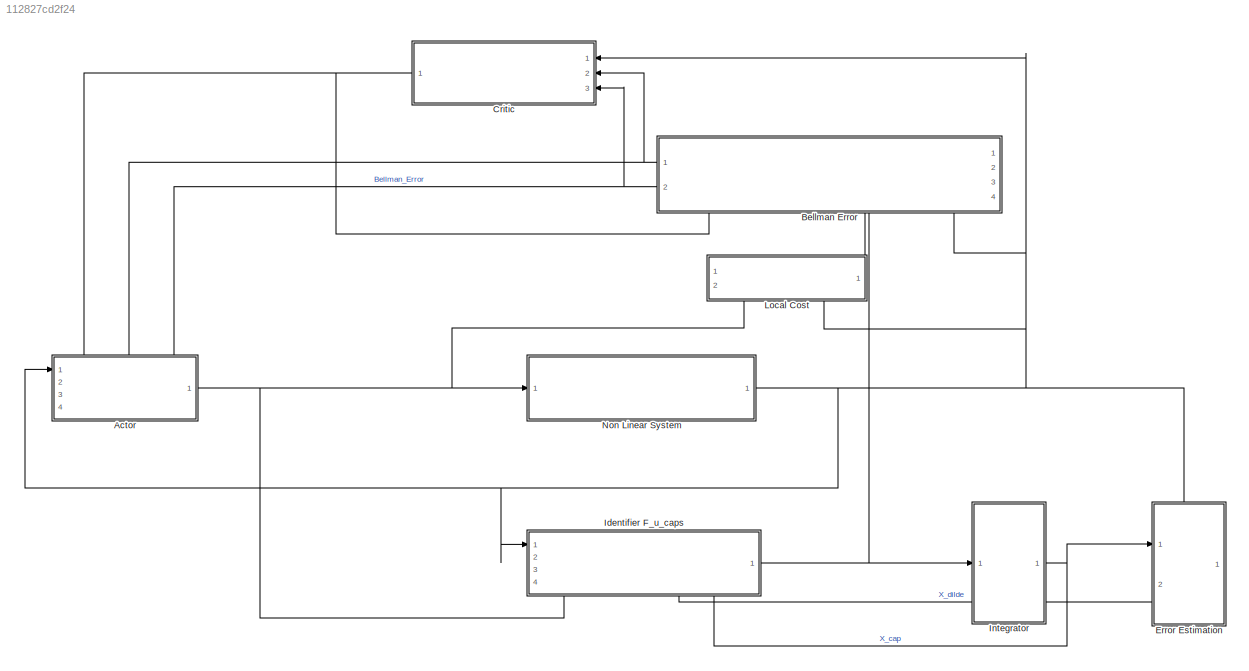
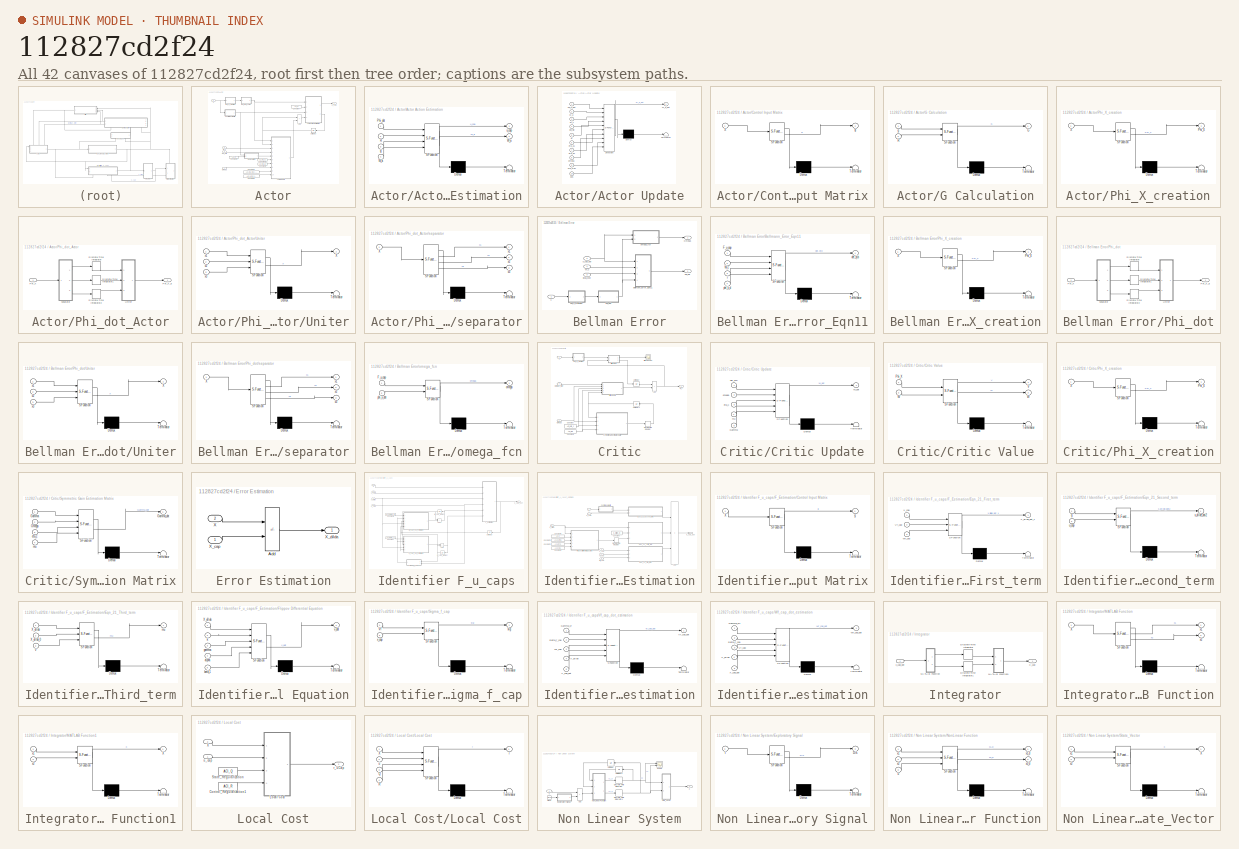
[diagram: thumbnail index - all 42 canvases of the model, root first then tree order]
MODEL slx_112827cd2f24
KIND model
CONFIG AbsTol = auto
CONFIG EnableMultiTasking = off
CONFIG FixedStep = auto
CONFIG MaxStep = auto
CONFIG MinStep = auto
CONFIG PreLoadFcn = SAMPLE_TIME = 0.01;\nX1_0               = 3;\nX2_0               = -1;\n
CONFIG RelTol = 1e-3
CONFIG SampleTimeConstraint = Unconstrained
CONFIG SolverName = ode45
CONFIG StartTime = 0.0
CONFIG StopTime = SIM_DURATION
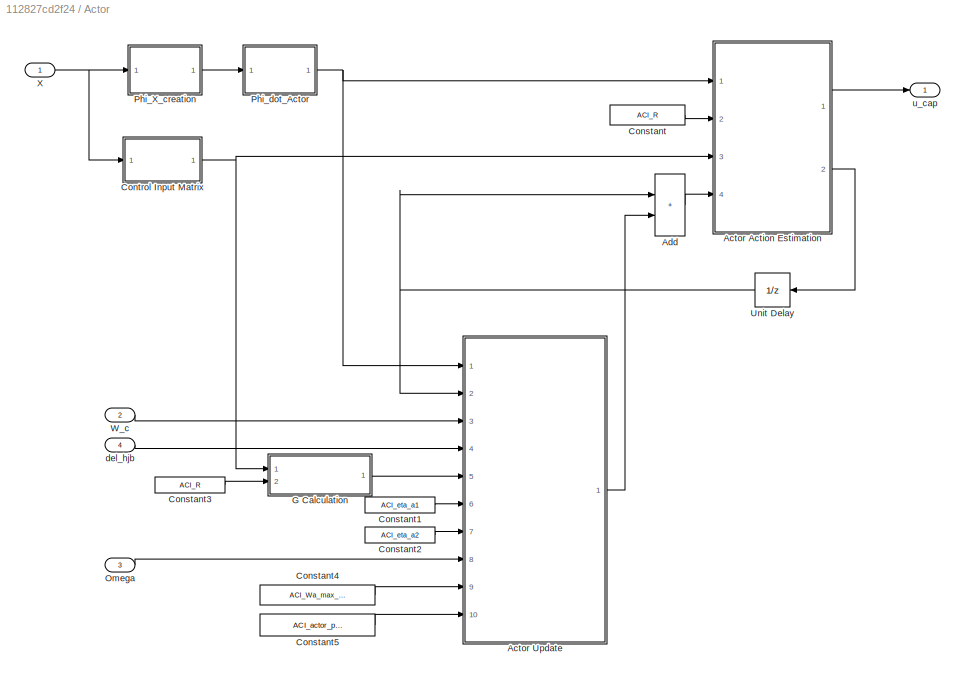
BLOCK [SubSystem] Actor
  PortSchema = {"entries":[{"content":{"sides":[{"content":{"connectorIds":["In1"]},"type":"ConnectorPlacement.EquallySpacedRectSide","uuid":"36bb19c7-ed28-4f81-a2b0-56b05d277fb3"},{"content":{"connectorIds":["Out1"],"side":"RIGHT"},"type":"ConnectorPlacement.EquallySpacedRectSide","uuid":"62e3b38d-27a4-411c-9c0c-4947886674bc"},{"content":{"connectorIds":["In2","In3","In4"],"side":"TOP"},"type":"ConnectorPlaceme...<+257ch>
  Ports = [4, 1]
  RequestExecContextInheritance = off
BLOCK [SubSystem] Actor/Actor Action Estimation
  ErrorFcn = Stateflow.Translate.translate
  PermitHierarchicalResolution = ExplicitOnly
  Ports = [4, 2]
  RequestExecContextInheritance = off
  SFBlockType = MATLAB Function
  TreatAsAtomicUnit = on
BLOCK [Demux] Actor/Actor Action Estimation/ Demux 
  Outputs = 1
  Ports = [1, 1]
BLOCK [S-Function] Actor/Actor Action Estimation/ SFunction 
  EnableBusSupport = on
  FunctionName = sf_sfun
  PortCounts = [4 3]
  Ports = [4, 3]
  SFcnIsStateOwnerBlock = off
  SFunctionDeploymentMode = off
  Tag = Stateflow S-Function 4
BLOCK [Terminator] Actor/Actor Action Estimation/ Terminator 
BLOCK [Inport] Actor/Actor Action Estimation/Phi_dot
BLOCK [Inport] Actor/Actor Action Estimation/R
  Port = 2
BLOCK [Outport] Actor/Actor Action Estimation/W_a
  Port = 2
BLOCK [Inport] Actor/Actor Action Estimation/W_a 
  Port = 4
BLOCK [Inport] Actor/Actor Action Estimation/g
  Port = 3
BLOCK [Outport] Actor/Actor Action Estimation/u_cap
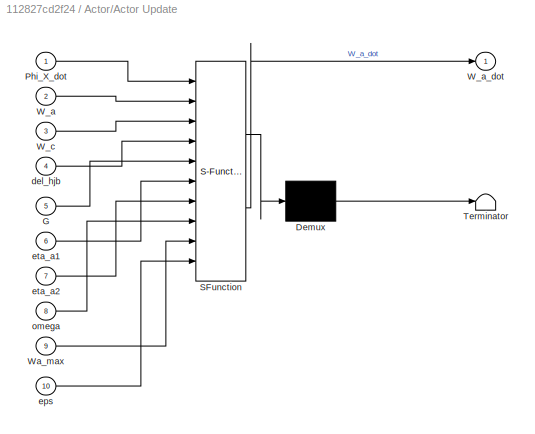
BLOCK [SubSystem] Actor/Actor Update
  ErrorFcn = Stateflow.Translate.translate
  PermitHierarchicalResolution = ExplicitOnly
  Ports = [10, 1]
  RequestExecContextInheritance = off
  SFBlockType = MATLAB Function
  TreatAsAtomicUnit = on
BLOCK [Demux] Actor/Actor Update/ Demux 
  Outputs = 1
  Ports = [1, 1]
BLOCK [S-Function] Actor/Actor Update/ SFunction 
  EnableBusSupport = on
  FunctionName = sf_sfun
  PortCounts = [10 2]
  Ports = [10, 2]
  SFcnIsStateOwnerBlock = off
  SFunctionDeploymentMode = off
  Tag = Stateflow S-Function 6
BLOCK [Terminator] Actor/Actor Update/ Terminator 
BLOCK [Inport] Actor/Actor Update/G
  Port = 5
BLOCK [Inport] Actor/Actor Update/Phi_X_dot
BLOCK [Inport] Actor/Actor Update/W_a
  Port = 2
BLOCK [Outport] Actor/Actor Update/W_a_dot
BLOCK [Inport] Actor/Actor Update/W_c
  Port = 3
BLOCK [Inport] Actor/Actor Update/Wa_max
  Port = 9
BLOCK [Inport] Actor/Actor Update/del_hjb
  Port = 4
BLOCK [Inport] Actor/Actor Update/eps
  Port = 10
BLOCK [Inport] Actor/Actor Update/eta_a1
  Port = 6
BLOCK [Inport] Actor/Actor Update/eta_a2
  Port = 7
BLOCK [Inport] Actor/Actor Update/omega
  Port = 8
BLOCK [Sum] Actor/Add
  IconShape = rectangular
  Ports = [2, 1]
BLOCK [Constant] Actor/Constant
  Value = ACI_R
BLOCK [Constant] Actor/Constant1
  Value = ACI_eta_a1
BLOCK [Constant] Actor/Constant2
  Value = ACI_eta_a2
BLOCK [Constant] Actor/Constant3
  Value = ACI_R
BLOCK [Constant] Actor/Constant4
  Value = ACI_Wa_max_proj
BLOCK [Constant] Actor/Constant5
  Value = ACI_actor_proj_eps
BLOCK [SubSystem] Actor/Control Input Matrix
  ErrorFcn = Stateflow.Translate.translate
  PermitHierarchicalResolution = ExplicitOnly
  Ports = [1, 1]
  RequestExecContextInheritance = off
  SFBlockType = MATLAB Function
  TreatAsAtomicUnit = on
BLOCK [Demux] Actor/Control Input Matrix/ Demux 
  Outputs = 1
  Ports = [1, 1]
BLOCK [S-Function] Actor/Control Input Matrix/ SFunction 
  EnableBusSupport = on
  FunctionName = sf_sfun
  PortCounts = [1 2]
  Ports = [1, 2]
  SFcnIsStateOwnerBlock = off
  SFunctionDeploymentMode = off
  Tag = Stateflow S-Function 5
BLOCK [Terminator] Actor/Control Input Matrix/ Terminator 
BLOCK [Inport] Actor/Control Input Matrix/X
BLOCK [Outport] Actor/Control Input Matrix/g
BLOCK [SubSystem] Actor/G Calculation
  ErrorFcn = Stateflow.Translate.translate
  PermitHierarchicalResolution = ExplicitOnly
  Ports = [2, 1]
  RequestExecContextInheritance = off
  SFBlockType = MATLAB Function
  TreatAsAtomicUnit = on
BLOCK [Demux] Actor/G Calculation/ Demux 
  Outputs = 1
  Ports = [1, 1]
BLOCK [S-Function] Actor/G Calculation/ SFunction 
  EnableBusSupport = on
  FunctionName = sf_sfun
  PortCounts = [2 2]
  Ports = [2, 2]
  SFcnIsStateOwnerBlock = off
  SFunctionDeploymentMode = off
  Tag = Stateflow S-Function 28
BLOCK [Terminator] Actor/G Calculation/ Terminator 
BLOCK [Outport] Actor/G Calculation/G
BLOCK [Inport] Actor/G Calculation/R
  Port = 2
BLOCK [Inport] Actor/G Calculation/g
BLOCK [Inport] Actor/Omega
  Port = 3
BLOCK [SubSystem] Actor/Phi_X_creation
  ErrorFcn = Stateflow.Translate.translate
  PermitHierarchicalResolution = ExplicitOnly
  Ports = [1, 1]
  RequestExecContextInheritance = off
  SFBlockType = MATLAB Function
  TreatAsAtomicUnit = on
BLOCK [Demux] Actor/Phi_X_creation/ Demux 
  Outputs = 1
  Ports = [1, 1]
BLOCK [S-Function] Actor/Phi_X_creation/ SFunction 
  EnableBusSupport = on
  FunctionName = sf_sfun
  PortCounts = [1 2]
  Ports = [1, 2]
  SFcnIsStateOwnerBlock = off
  SFunctionDeploymentMode = off
  Tag = Stateflow S-Function 23
BLOCK [Terminator] Actor/Phi_X_creation/ Terminator 
BLOCK [Outport] Actor/Phi_X_creation/Phi_X
BLOCK [Inport] Actor/Phi_X_creation/X
BLOCK [SubSystem] Actor/Phi_dot_Actor
  Ports = [1, 1]
  RequestExecContextInheritance = off
BLOCK [DiscreteIntegrator] Actor/Phi_dot_Actor/Discrete-Time Integrator
  ICPrevOutput = DiscIntNeverNeededParam
  ICPrevScaledInput = DiscIntNeverNeededParam
  InitialConditionSetting = Auto
  Ports = [1, 1]
  SampleTime = -1
BLOCK [DiscreteIntegrator] Actor/Phi_dot_Actor/Discrete-Time Integrator1
  ICPrevOutput = DiscIntNeverNeededParam
  ICPrevScaledInput = DiscIntNeverNeededParam
  InitialConditionSetting = Auto
  Ports = [1, 1]
  SampleTime = -1
BLOCK [DiscreteIntegrator] Actor/Phi_dot_Actor/Discrete-Time Integrator2
  ICPrevOutput = DiscIntNeverNeededParam
  ICPrevScaledInput = DiscIntNeverNeededParam
  InitialConditionSetting = Auto
  Ports = [1, 1]
  SampleTime = -1
BLOCK [Inport] Actor/Phi_dot_Actor/Phi_X
BLOCK [Outport] Actor/Phi_dot_Actor/Phi_X_d
BLOCK [SubSystem] Actor/Phi_dot_Actor/Uniter
  ErrorFcn = Stateflow.Translate.translate
  PermitHierarchicalResolution = ExplicitOnly
  Ports = [3, 1]
  RequestExecContextInheritance = off
  SFBlockType = MATLAB Function
  TreatAsAtomicUnit = on
BLOCK [Demux] Actor/Phi_dot_Actor/Uniter/ Demux 
  Outputs = 1
  Ports = [1, 1]
BLOCK [S-Function] Actor/Phi_dot_Actor/Uniter/ SFunction 
  EnableBusSupport = on
  FunctionName = sf_sfun
  PortCounts = [3 2]
  Ports = [3, 2]
  SFcnIsStateOwnerBlock = off
  SFunctionDeploymentMode = off
  Tag = Stateflow S-Function 26
BLOCK [Terminator] Actor/Phi_dot_Actor/Uniter/ Terminator 
BLOCK [Outport] Actor/Phi_dot_Actor/Uniter/X
BLOCK [Inport] Actor/Phi_dot_Actor/Uniter/x1
BLOCK [Inport] Actor/Phi_dot_Actor/Uniter/x2
  Port = 2
BLOCK [Inport] Actor/Phi_dot_Actor/Uniter/x3
  Port = 3
BLOCK [SubSystem] Actor/Phi_dot_Actor/separator
  ErrorFcn = Stateflow.Translate.translate
  PermitHierarchicalResolution = ExplicitOnly
  Ports = [1, 3]
  RequestExecContextInheritance = off
  SFBlockType = MATLAB Function
  TreatAsAtomicUnit = on
BLOCK [Demux] Actor/Phi_dot_Actor/separator/ Demux 
  Outputs = 1
  Ports = [1, 1]
BLOCK [S-Function] Actor/Phi_dot_Actor/separator/ SFunction 
  EnableBusSupport = on
  FunctionName = sf_sfun
  PortCounts = [1 4]
  Ports = [1, 4]
  SFcnIsStateOwnerBlock = off
  SFunctionDeploymentMode = off
  Tag = Stateflow S-Function 27
BLOCK [Terminator] Actor/Phi_dot_Actor/separator/ Terminator 
BLOCK [Inport] Actor/Phi_dot_Actor/separator/X
BLOCK [Outport] Actor/Phi_dot_Actor/separator/x1
BLOCK [Outport] Actor/Phi_dot_Actor/separator/x2
  Port = 2
BLOCK [Outport] Actor/Phi_dot_Actor/separator/x3
  Port = 3
BLOCK [UnitDelay] Actor/Unit Delay
  HasFrameUpgradeWarning = on
  InitialCondition = W_Actor_0
  SampleTime = SAMPLE_TIME
BLOCK [Inport] Actor/W_c
  Port = 2
BLOCK [Inport] Actor/X
BLOCK [Inport] Actor/del_hjb
  Port = 4
BLOCK [Outport] Actor/u_cap
BLOCK [SubSystem] Bellman Error
  PortSchema = {"entries":[{"content":{"sides":[{"content":{"connectorIds":[]},"type":"ConnectorPlacement.EquallySpacedRectSide","uuid":"36bb19c7-ed28-4f81-a2b0-56b05d277fb3"},{"content":{"connectorIds":["Out1","Out2"],"side":"RIGHT"},"type":"ConnectorPlacement.EquallySpacedRectSide","uuid":"62e3b38d-27a4-411c-9c0c-4947886674bc"},{"content":{"connectorIds":[],"side":"TOP"},"type":"ConnectorPlacement.EquallySpace...<+409ch>
  Ports = [4, 2]
  RequestExecContextInheritance = off
BLOCK [SubSystem] Bellman Error/Bellmann_Error_Eqn11
  ErrorFcn = Stateflow.Translate.translate
  PermitHierarchicalResolution = ExplicitOnly
  Ports = [4, 1]
  RequestExecContextInheritance = off
  SFBlockType = MATLAB Function
  TreatAsAtomicUnit = on
BLOCK [Demux] Bellman Error/Bellmann_Error_Eqn11/ Demux 
  Outputs = 1
  Ports = [1, 1]
BLOCK [S-Function] Bellman Error/Bellmann_Error_Eqn11/ SFunction 
  EnableBusSupport = on
  FunctionName = sf_sfun
  PortCounts = [4 2]
  Ports = [4, 2]
  SFcnIsStateOwnerBlock = off
  SFunctionDeploymentMode = off
  Tag = Stateflow S-Function 15
BLOCK [Terminator] Bellman Error/Bellmann_Error_Eqn11/ Terminator 
BLOCK [Inport] Bellman Error/Bellmann_Error_Eqn11/F_u_cap
BLOCK [Inport] Bellman Error/Bellmann_Error_Eqn11/W_c
  Port = 2
BLOCK [Outport] Bellman Error/Bellmann_Error_Eqn11/del_hjb
BLOCK [Inport] Bellman Error/Bellmann_Error_Eqn11/phi_x_d
  Port = 4
BLOCK [Inport] Bellman Error/Bellmann_Error_Eqn11/r
  Port = 3
BLOCK [Outport] Bellman Error/Omega
BLOCK [SubSystem] Bellman Error/Phi_X_creation
  ErrorFcn = Stateflow.Translate.translate
  PermitHierarchicalResolution = ExplicitOnly
  Ports = [1, 1]
  RequestExecContextInheritance = off
  SFBlockType = MATLAB Function
  TreatAsAtomicUnit = on
BLOCK [Demux] Bellman Error/Phi_X_creation/ Demux 
  Outputs = 1
  Ports = [1, 1]
BLOCK [S-Function] Bellman Error/Phi_X_creation/ SFunction 
  EnableBusSupport = on
  FunctionName = sf_sfun
  PortCounts = [1 2]
  Ports = [1, 2]
  SFcnIsStateOwnerBlock = off
  SFunctionDeploymentMode = off
  Tag = Stateflow S-Function 18
BLOCK [Terminator] Bellman Error/Phi_X_creation/ Terminator 
BLOCK [Outport] Bellman Error/Phi_X_creation/Phi_X
BLOCK [Inport] Bellman Error/Phi_X_creation/X
BLOCK [SubSystem] Bellman Error/Phi_dot
  Ports = [1, 1]
  RequestExecContextInheritance = off
BLOCK [DiscreteIntegrator] Bellman Error/Phi_dot/Discrete-Time Integrator
  ICPrevOutput = DiscIntNeverNeededParam
  ICPrevScaledInput = DiscIntNeverNeededParam
  InitialConditionSetting = Auto
  Ports = [1, 1]
  SampleTime = -1
BLOCK [DiscreteIntegrator] Bellman Error/Phi_dot/Discrete-Time Integrator1
  ICPrevOutput = DiscIntNeverNeededParam
  ICPrevScaledInput = DiscIntNeverNeededParam
  InitialConditionSetting = Auto
  Ports = [1, 1]
  SampleTime = -1
BLOCK [DiscreteIntegrator] Bellman Error/Phi_dot/Discrete-Time Integrator2
  ICPrevOutput = DiscIntNeverNeededParam
  ICPrevScaledInput = DiscIntNeverNeededParam
  InitialConditionSetting = Auto
  Ports = [1, 1]
  SampleTime = -1
BLOCK [Inport] Bellman Error/Phi_dot/Phi_X
BLOCK [Outport] Bellman Error/Phi_dot/Phi_X_d
BLOCK [SubSystem] Bellman Error/Phi_dot/Uniter
  ErrorFcn = Stateflow.Translate.translate
  PermitHierarchicalResolution = ExplicitOnly
  Ports = [3, 1]
  RequestExecContextInheritance = off
  SFBlockType = MATLAB Function
  TreatAsAtomicUnit = on
BLOCK [Demux] Bellman Error/Phi_dot/Uniter/ Demux 
  Outputs = 1
  Ports = [1, 1]
BLOCK [S-Function] Bellman Error/Phi_dot/Uniter/ SFunction 
  EnableBusSupport = on
  FunctionName = sf_sfun
  PortCounts = [3 2]
  Ports = [3, 2]
  SFcnIsStateOwnerBlock = off
  SFunctionDeploymentMode = off
  Tag = Stateflow S-Function 20
BLOCK [Terminator] Bellman Error/Phi_dot/Uniter/ Terminator 
BLOCK [Outport] Bellman Error/Phi_dot/Uniter/X
BLOCK [Inport] Bellman Error/Phi_dot/Uniter/x1
BLOCK [Inport] Bellman Error/Phi_dot/Uniter/x2
  Port = 2
BLOCK [Inport] Bellman Error/Phi_dot/Uniter/x3
  Port = 3
BLOCK [SubSystem] Bellman Error/Phi_dot/separator
  ErrorFcn = Stateflow.Translate.translate
  PermitHierarchicalResolution = ExplicitOnly
  Ports = [1, 3]
  RequestExecContextInheritance = off
  SFBlockType = MATLAB Function
  TreatAsAtomicUnit = on
BLOCK [Demux] Bellman Error/Phi_dot/separator/ Demux 
  Outputs = 1
  Ports = [1, 1]
BLOCK [S-Function] Bellman Error/Phi_dot/separator/ SFunction 
  EnableBusSupport = on
  FunctionName = sf_sfun
  PortCounts = [1 4]
  Ports = [1, 4]
  SFcnIsStateOwnerBlock = off
  SFunctionDeploymentMode = off
  Tag = Stateflow S-Function 19
BLOCK [Terminator] Bellman Error/Phi_dot/separator/ Terminator 
BLOCK [Inport] Bellman Error/Phi_dot/separator/X
BLOCK [Outport] Bellman Error/Phi_dot/separator/x1
BLOCK [Outport] Bellman Error/Phi_dot/separator/x2
  Port = 2
BLOCK [Outport] Bellman Error/Phi_dot/separator/x3
  Port = 3
BLOCK [Inport] Bellman Error/W_c
  Port = 4
BLOCK [Inport] Bellman Error/X
BLOCK [Inport] Bellman Error/X_cap_dot
  Port = 2
BLOCK [Outport] Bellman Error/del_hjb
  Port = 2
BLOCK [Inport] Bellman Error/local_cost
  Port = 3
BLOCK [SubSystem] Bellman Error/omega_fcn
  ErrorFcn = Stateflow.Translate.translate
  PermitHierarchicalResolution = ExplicitOnly
  Ports = [2, 1]
  RequestExecContextInheritance = off
  SFBlockType = MATLAB Function
  TreatAsAtomicUnit = on
BLOCK [Demux] Bellman Error/omega_fcn/ Demux 
  Outputs = 1
  Ports = [1, 1]
BLOCK [S-Function] Bellman Error/omega_fcn/ SFunction 
  EnableBusSupport = on
  FunctionName = sf_sfun
  PortCounts = [2 2]
  Ports = [2, 2]
  SFcnIsStateOwnerBlock = off
  SFunctionDeploymentMode = off
  Tag = Stateflow S-Function 25
BLOCK [Terminator] Bellman Error/omega_fcn/ Terminator 
BLOCK [Inport] Bellman Error/omega_fcn/F_u_cap
BLOCK [Outport] Bellman Error/omega_fcn/omega
BLOCK [Inport] Bellman Error/omega_fcn/phi_x_dot
  Port = 2
BLOCK [SubSystem] Critic
  Ports = [3, 1]
  RequestExecContextInheritance = off
BLOCK [Sum] Critic/Add
  IconShape = rectangular
  Ports = [2, 1]
BLOCK [Inport] Critic/Bellman_Error
  Port = 3
BLOCK [Constant] Critic/Constant
  Value = ACI_eta_c
BLOCK [Constant] Critic/Constant1
  Value = ACI_mu
BLOCK [SubSystem] Critic/Critic Update
  ErrorFcn = Stateflow.Translate.translate
  PermitHierarchicalResolution = ExplicitOnly
  Ports = [5, 1]
  RequestExecContextInheritance = off
  SFBlockType = MATLAB Function
  TreatAsAtomicUnit = on
BLOCK [Demux] Critic/Critic Update/ Demux 
  Outputs = 1
  Ports = [1, 1]
BLOCK [S-Function] Critic/Critic Update/ SFunction 
  EnableBusSupport = on
  FunctionName = sf_sfun
  PortCounts = [5 2]
  Ports = [5, 2]
  SFcnIsStateOwnerBlock = off
  SFunctionDeploymentMode = off
  Tag = Stateflow S-Function 3
BLOCK [Terminator] Critic/Critic Update/ Terminator 
BLOCK [Inport] Critic/Critic Update/Gamma
  Port = 5
BLOCK [Outport] Critic/Critic Update/W_dot
BLOCK [Inport] Critic/Critic Update/del_hjb
BLOCK [Inport] Critic/Critic Update/eta_c
  Port = 3
BLOCK [Inport] Critic/Critic Update/mu
  Port = 4
BLOCK [Inport] Critic/Critic Update/omega
  Port = 2
BLOCK [SubSystem] Critic/Critic Value
  ErrorFcn = Stateflow.Translate.translate
  PermitHierarchicalResolution = ExplicitOnly
  Ports = [2, 2]
  RequestExecContextInheritance = off
  SFBlockType = MATLAB Function
  TreatAsAtomicUnit = on
BLOCK [Demux] Critic/Critic Value/ Demux 
  Outputs = 1
  Ports = [1, 1]
BLOCK [S-Function] Critic/Critic Value/ SFunction 
  EnableBusSupport = on
  FunctionName = sf_sfun
  PortCounts = [2 3]
  Ports = [2, 3]
  SFcnIsStateOwnerBlock = off
  SFunctionDeploymentMode = off
  Tag = Stateflow S-Function 1
BLOCK [Terminator] Critic/Critic Value/ Terminator 
BLOCK [Inport] Critic/Critic Value/Phi_X
BLOCK [Outport] Critic/Critic Value/V
BLOCK [Outport] Critic/Critic Value/W
  Port = 2
BLOCK [Inport] Critic/Critic Value/W 
  Port = 2
BLOCK [Scope] Critic/Critiv Value Plot
  Floating = off
  NumInputPorts = 1
  Ports = [1]
  ScopeSpecificationString = Simulink.scopes.TimeScopeBlockCfg('CurrentConfiguration', extmgr.ConfigurationSet(extmgr.Configuration('Core','General UI',true),extmgr.Configuration('Core','Source UI',true),extmgr.Configuration('Sources','WiredSimulink',true,'DataLoggingVariableName','ScopeData1'),extmgr.Configuration('Visuals','Time Domain',true),extmgr.Configuration('Tools','Plot Navigation',true),extmgr.Configuration('Tools',...<+40ch>
BLOCK [DiscreteIntegrator] Critic/Discrete-Time Integrator
  ICPrevOutput = DiscIntNeverNeededParam
  ICPrevScaledInput = DiscIntNeverNeededParam
  InitialCondition = ACI_Gamma_0
  InitialConditionSetting = Auto
  Ports = [1, 1]
  SampleTime = -1
BLOCK [Inport] Critic/Omega
  Port = 2
BLOCK [SubSystem] Critic/Phi_X_creation
  ErrorFcn = Stateflow.Translate.translate
  PermitHierarchicalResolution = ExplicitOnly
  Ports = [1, 1]
  RequestExecContextInheritance = off
  SFBlockType = MATLAB Function
  TreatAsAtomicUnit = on
BLOCK [Demux] Critic/Phi_X_creation/ Demux 
  Outputs = 1
  Ports = [1, 1]
BLOCK [S-Function] Critic/Phi_X_creation/ SFunction 
  EnableBusSupport = on
  FunctionName = sf_sfun
  PortCounts = [1 2]
  Ports = [1, 2]
  SFcnIsStateOwnerBlock = off
  SFunctionDeploymentMode = off
  Tag = Stateflow S-Function 22
BLOCK [Terminator] Critic/Phi_X_creation/ Terminator 
BLOCK [Outport] Critic/Phi_X_creation/Phi_X
BLOCK [Inport] Critic/Phi_X_creation/X
BLOCK [SubSystem] Critic/Symmetric Gain Estimation Matrix
  ErrorFcn = Stateflow.Translate.translate
  PermitHierarchicalResolution = ExplicitOnly
  Ports = [4, 1]
  RequestExecContextInheritance = off
  SFBlockType = MATLAB Function
  TreatAsAtomicUnit = on
BLOCK [Demux] Critic/Symmetric Gain Estimation Matrix/ Demux 
  Outputs = 1
  Ports = [1, 1]
BLOCK [S-Function] Critic/Symmetric Gain Estimation Matrix/ SFunction 
  EnableBusSupport = on
  FunctionName = sf_sfun
  PortCounts = [4 2]
  Ports = [4, 2]
  SFcnIsStateOwnerBlock = off
  SFunctionDeploymentMode = off
  Tag = Stateflow S-Function 24
BLOCK [Terminator] Critic/Symmetric Gain Estimation Matrix/ Terminator 
BLOCK [Inport] Critic/Symmetric Gain Estimation Matrix/Gamma
BLOCK [Outport] Critic/Symmetric Gain Estimation Matrix/Gamma_dot
BLOCK [Inport] Critic/Symmetric Gain Estimation Matrix/Omega
  Port = 2
BLOCK [Inport] Critic/Symmetric Gain Estimation Matrix/eta_c
  Port = 3
BLOCK [Inport] Critic/Symmetric Gain Estimation Matrix/mu
  Port = 4
BLOCK [UnitDelay] Critic/Unit Delay
  HasFrameUpgradeWarning = on
  InitialCondition = W_Critic_0
  SampleTime = SAMPLE_TIME
BLOCK [UnitDelay] Critic/Unit Delay1
  HasFrameUpgradeWarning = on
  SampleTime = -1
BLOCK [Outport] Critic/W_c
BLOCK [Inport] Critic/X
BLOCK [SubSystem] Error Estimation
  PortSchema = {"entries":[{"content":{"sides":[{"content":{"connectorIds":["In1"]},"type":"ConnectorPlacement.EquallySpacedRectSide","uuid":"e6cf2d84-7a10-4a43-bedd-b04786a9576e"},{"content":{"connectorIds":[],"side":"RIGHT"},"type":"ConnectorPlacement.EquallySpacedRectSide","uuid":"10774151-562d-4d84-8145-e832c7227519"},{"content":{"connectorIds":["In2"],"side":"TOP"},"type":"ConnectorPlacement.EquallySpacedRe...<+389ch>
  Ports = [2, 1]
  RequestExecContextInheritance = off
BLOCK [Sum] Error Estimation/Add
  IconShape = rectangular
  Inputs = +-
  Ports = [2, 1]
BLOCK [Inport] Error Estimation/X
  Port = 2
BLOCK [Inport] Error Estimation/X_cap
BLOCK [Outport] Error Estimation/X_dilda
BLOCK [SubSystem] Identifier F_u_caps
  PortSchema = {"entries":[{"content":{"sides":[{"content":{"connectorIds":["In1"]},"type":"ConnectorPlacement.EquallySpacedRectSide","uuid":"36bb19c7-ed28-4f81-a2b0-56b05d277fb3"},{"content":{"connectorIds":["Out1"],"side":"RIGHT"},"type":"ConnectorPlacement.EquallySpacedRectSide","uuid":"62e3b38d-27a4-411c-9c0c-4947886674bc"},{"content":{"connectorIds":[],"side":"TOP"},"type":"ConnectorPlacement.EquallySpacedR...<+401ch>
  Ports = [4, 1]
  RequestExecContextInheritance = off
BLOCK [Sum] Identifier F_u_caps/Add
  IconShape = rectangular
  Ports = [2, 1]
BLOCK [Sum] Identifier F_u_caps/Add1
  IconShape = rectangular
  Ports = [2, 1]
BLOCK [Constant] Identifier F_u_caps/Constant
  Value = ACI_Gamma_vf
BLOCK [Constant] Identifier F_u_caps/Constant1
  Value = ACI_Gamma_wf
BLOCK [SubSystem] Identifier F_u_caps/F_Estimation
  Ports = [6, 1]
  RequestExecContextInheritance = off
BLOCK [Sum] Identifier F_u_caps/F_Estimation/Add
  IconShape = rectangular
  Inputs = +++
  Ports = [3, 1]
BLOCK [Constant] Identifier F_u_caps/F_Estimation/Constant
  Value = X_dilde_0
BLOCK [Constant] Identifier F_u_caps/F_Estimation/Constant1
  Value = ACI_beta1
BLOCK [Constant] Identifier F_u_caps/F_Estimation/Constant2
  Value = ACI_alpha
BLOCK [Constant] Identifier F_u_caps/F_Estimation/Constant3
  Value = ACI_gamma
BLOCK [Constant] Identifier F_u_caps/F_Estimation/Constant4
  Value = ACI_k
BLOCK [SubSystem] Identifier F_u_caps/F_Estimation/Control Input Matrix
  ErrorFcn = Stateflow.Translate.translate
  PermitHierarchicalResolution = ExplicitOnly
  Ports = [1, 1]
  RequestExecContextInheritance = off
  SFBlockType = MATLAB Function
  TreatAsAtomicUnit = on
BLOCK [Demux] Identifier F_u_caps/F_Estimation/Control Input Matrix/ Demux 
  Outputs = 1
  Ports = [1, 1]
BLOCK [S-Function] Identifier F_u_caps/F_Estimation/Control Input Matrix/ SFunction 
  EnableBusSupport = on
  FunctionName = sf_sfun
  PortCounts = [1 2]
  Ports = [1, 2]
  SFcnIsStateOwnerBlock = off
  SFunctionDeploymentMode = off
  Tag = Stateflow S-Function 7
BLOCK [Terminator] Identifier F_u_caps/F_Estimation/Control Input Matrix/ Terminator 
BLOCK [Inport] Identifier F_u_caps/F_Estimation/Control Input Matrix/X
BLOCK [Outport] Identifier F_u_caps/F_Estimation/Control Input Matrix/g
BLOCK [DiscreteIntegrator] Identifier F_u_caps/F_Estimation/Discrete-Time Integrator
  ICPrevOutput = DiscIntNeverNeededParam
  ICPrevScaledInput = DiscIntNeverNeededParam
  InitialConditionSetting = Auto
  Ports = [1, 1]
  SampleTime = SAMPLE_TIME
BLOCK [SubSystem] Identifier F_u_caps/F_Estimation/Eqn_21_First_term
  ErrorFcn = Stateflow.Translate.translate
  PermitHierarchicalResolution = ExplicitOnly
  Ports = [3, 1]
  RequestExecContextInheritance = off
  SFBlockType = MATLAB Function
  TreatAsAtomicUnit = on
BLOCK [Demux] Identifier F_u_caps/F_Estimation/Eqn_21_First_term/ Demux 
  Outputs = 1
  Ports = [1, 1]
BLOCK [S-Function] Identifier F_u_caps/F_Estimation/Eqn_21_First_term/ SFunction 
  EnableBusSupport = on
  FunctionName = sf_sfun
  PortCounts = [3 2]
  Ports = [3, 2]
  SFcnIsStateOwnerBlock = off
  SFunctionDeploymentMode = off
  Tag = Stateflow S-Function 11
BLOCK [Terminator] Identifier F_u_caps/F_Estimation/Eqn_21_First_term/ Terminator 
BLOCK [Inport] Identifier F_u_caps/F_Estimation/Eqn_21_First_term/Vf_cap
  Port = 2
BLOCK [Inport] Identifier F_u_caps/F_Estimation/Eqn_21_First_term/Wf_cap
  Port = 3
BLOCK [Inport] Identifier F_u_caps/F_Estimation/Eqn_21_First_term/X_cap
BLOCK [Outport] Identifier F_u_caps/F_Estimation/Eqn_21_First_term/X_dilde_dot_1
BLOCK [SubSystem] Identifier F_u_caps/F_Estimation/Eqn_21_Second_term
  ErrorFcn = Stateflow.Translate.translate
  PermitHierarchicalResolution = ExplicitOnly
  Ports = [2, 1]
  RequestExecContextInheritance = off
  SFBlockType = MATLAB Function
  TreatAsAtomicUnit = on
BLOCK [Demux] Identifier F_u_caps/F_Estimation/Eqn_21_Second_term/ Demux 
  Outputs = 1
  Ports = [1, 1]
BLOCK [S-Function] Identifier F_u_caps/F_Estimation/Eqn_21_Second_term/ SFunction 
  EnableBusSupport = on
  FunctionName = sf_sfun
  PortCounts = [2 2]
  Ports = [2, 2]
  SFcnIsStateOwnerBlock = off
  SFunctionDeploymentMode = off
  Tag = Stateflow S-Function 8
BLOCK [Terminator] Identifier F_u_caps/F_Estimation/Eqn_21_Second_term/ Terminator 
BLOCK [Inport] Identifier F_u_caps/F_Estimation/Eqn_21_Second_term/g
BLOCK [Inport] Identifier F_u_caps/F_Estimation/Eqn_21_Second_term/u_cap
  Port = 2
BLOCK [Outport] Identifier F_u_caps/F_Estimation/Eqn_21_Second_term/x_dilde_dot2
BLOCK [SubSystem] Identifier F_u_caps/F_Estimation/Eqn_21_Third_term
  ErrorFcn = Stateflow.Translate.translate
  PermitHierarchicalResolution = ExplicitOnly
  Ports = [3, 1]
  RequestExecContextInheritance = off
  SFBlockType = MATLAB Function
  TreatAsAtomicUnit = on
BLOCK [Demux] Identifier F_u_caps/F_Estimation/Eqn_21_Third_term/ Demux 
  Outputs = 1
  Ports = [1, 1]
BLOCK [S-Function] Identifier F_u_caps/F_Estimation/Eqn_21_Third_term/ SFunction 
  EnableBusSupport = on
  FunctionName = sf_sfun
  PortCounts = [3 2]
  Ports = [3, 2]
  SFcnIsStateOwnerBlock = off
  SFunctionDeploymentMode = off
  Tag = Stateflow S-Function 9
BLOCK [Terminator] Identifier F_u_caps/F_Estimation/Eqn_21_Third_term/ Terminator 
BLOCK [Inport] Identifier F_u_caps/F_Estimation/Eqn_21_Third_term/X_dilde
BLOCK [Inport] Identifier F_u_caps/F_Estimation/Eqn_21_Third_term/X_dilde_0
  Port = 2
BLOCK [Outport] Identifier F_u_caps/F_Estimation/Eqn_21_Third_term/mu
BLOCK [Inport] Identifier F_u_caps/F_Estimation/Eqn_21_Third_term/v
  Port = 3
BLOCK [SubSystem] Identifier F_u_caps/F_Estimation/Flippov Differential Equation
  ErrorFcn = Stateflow.Translate.translate
  PermitHierarchicalResolution = ExplicitOnly
  Ports = [5, 1]
  RequestExecContextInheritance = off
  SFBlockType = MATLAB Function
  TreatAsAtomicUnit = on
BLOCK [Demux] Identifier F_u_caps/F_Estimation/Flippov Differential Equation/ Demux 
  Outputs = 1
  Ports = [1, 1]
BLOCK [S-Function] Identifier F_u_caps/F_Estimation/Flippov Differential Equation/ SFunction 
  EnableBusSupport = on
  FunctionName = sf_sfun
  PortCounts = [5 2]
  Ports = [5, 2]
  SFcnIsStateOwnerBlock = off
  SFunctionDeploymentMode = off
  Tag = Stateflow S-Function 10
BLOCK [Terminator] Identifier F_u_caps/F_Estimation/Flippov Differential Equation/ Terminator 
BLOCK [Inport] Identifier F_u_caps/F_Estimation/Flippov Differential Equation/X_dilde
BLOCK [Inport] Identifier F_u_caps/F_Estimation/Flippov Differential Equation/alpha
  Port = 4
BLOCK [Inport] Identifier F_u_caps/F_Estimation/Flippov Differential Equation/beta_1
  Port = 5
BLOCK [Inport] Identifier F_u_caps/F_Estimation/Flippov Differential Equation/gamma
  Port = 3
BLOCK [Inport] Identifier F_u_caps/F_Estimation/Flippov Differential Equation/k
  Port = 2
BLOCK [Outport] Identifier F_u_caps/F_Estimation/Flippov Differential Equation/v_dot
BLOCK [Inport] Identifier F_u_caps/F_Estimation/Vf_cap
  Port = 6
BLOCK [Inport] Identifier F_u_caps/F_Estimation/Wf_cap
  Port = 5
BLOCK [Inport] Identifier F_u_caps/F_Estimation/X
BLOCK [Inport] Identifier F_u_caps/F_Estimation/X_cap
  Port = 4
BLOCK [Outport] Identifier F_u_caps/F_Estimation/X_cap_dot
BLOCK [Inport] Identifier F_u_caps/F_Estimation/X_dilde
  Port = 3
BLOCK [Inport] Identifier F_u_caps/F_Estimation/u_cap
  Port = 2
BLOCK [SubSystem] Identifier F_u_caps/Sigma_f_cap
  ErrorFcn = Stateflow.Translate.translate
  PermitHierarchicalResolution = ExplicitOnly
  Ports = [2, 1]
  RequestExecContextInheritance = off
  SFBlockType = MATLAB Function
  TreatAsAtomicUnit = on
BLOCK [Demux] Identifier F_u_caps/Sigma_f_cap/ Demux 
  Outputs = 1
  Ports = [1, 1]
BLOCK [S-Function] Identifier F_u_caps/Sigma_f_cap/ SFunction 
  EnableBusSupport = on
  FunctionName = sf_sfun
  PortCounts = [2 2]
  Ports = [2, 2]
  SFcnIsStateOwnerBlock = off
  SFunctionDeploymentMode = off
  Tag = Stateflow S-Function 30
BLOCK [Terminator] Identifier F_u_caps/Sigma_f_cap/ Terminator 
BLOCK [Inport] Identifier F_u_caps/Sigma_f_cap/Vf
BLOCK [Outport] Identifier F_u_caps/Sigma_f_cap/sig
BLOCK [Inport] Identifier F_u_caps/Sigma_f_cap/x_cap
  Port = 2
BLOCK [UnitDelay] Identifier F_u_caps/Unit Delay
  HasFrameUpgradeWarning = on
  SampleTime = -1
BLOCK [SubSystem] Identifier F_u_caps/Vf_cap_dot_estimation
  ErrorFcn = Stateflow.Translate.translate
  PermitHierarchicalResolution = ExplicitOnly
  Ports = [5, 1]
  RequestExecContextInheritance = off
  SFBlockType = MATLAB Function
  TreatAsAtomicUnit = on
BLOCK [Demux] Identifier F_u_caps/Vf_cap_dot_estimation/ Demux 
  Outputs = 1
  Ports = [1, 1]
BLOCK [S-Function] Identifier F_u_caps/Vf_cap_dot_estimation/ SFunction 
  EnableBusSupport = on
  FunctionName = sf_sfun
  PortCounts = [5 2]
  Ports = [5, 2]
  SFcnIsStateOwnerBlock = off
  SFunctionDeploymentMode = off
  Tag = Stateflow S-Function 13
BLOCK [Terminator] Identifier F_u_caps/Vf_cap_dot_estimation/ Terminator 
BLOCK [Inport] Identifier F_u_caps/Vf_cap_dot_estimation/Gamma_vf
BLOCK [Outport] Identifier F_u_caps/Vf_cap_dot_estimation/Vf_cap_dot
BLOCK [Inport] Identifier F_u_caps/Vf_cap_dot_estimation/Wf_cap
  Port = 3
BLOCK [Inport] Identifier F_u_caps/Vf_cap_dot_estimation/X_cap_dot
  Port = 5
BLOCK [Inport] Identifier F_u_caps/Vf_cap_dot_estimation/X_dilde
  Port = 4
BLOCK [Inport] Identifier F_u_caps/Vf_cap_dot_estimation/sigma_f_cap
  Port = 2
BLOCK [UnitDelay] Identifier F_u_caps/Vf_cap_weight
  HasFrameUpgradeWarning = on
  SampleTime = -1
BLOCK [SubSystem] Identifier F_u_caps/Wf_cap_dot_estimation
  ErrorFcn = Stateflow.Translate.translate
  PermitHierarchicalResolution = ExplicitOnly
  Ports = [5, 1]
  RequestExecContextInheritance = off
  SFBlockType = MATLAB Function
  TreatAsAtomicUnit = on
BLOCK [Demux] Identifier F_u_caps/Wf_cap_dot_estimation/ Demux 
  Outputs = 1
  Ports = [1, 1]
BLOCK [S-Function] Identifier F_u_caps/Wf_cap_dot_estimation/ SFunction 
  EnableBusSupport = on
  FunctionName = sf_sfun
  PortCounts = [5 2]
  Ports = [5, 2]
  SFcnIsStateOwnerBlock = off
  SFunctionDeploymentMode = off
  Tag = Stateflow S-Function 12
BLOCK [Terminator] Identifier F_u_caps/Wf_cap_dot_estimation/ Terminator 
BLOCK [Inport] Identifier F_u_caps/Wf_cap_dot_estimation/Gamma_wf
BLOCK [Inport] Identifier F_u_caps/Wf_cap_dot_estimation/Vf_cap
  Port = 3
BLOCK [Outport] Identifier F_u_caps/Wf_cap_dot_estimation/Wf_cap_dot
BLOCK [Inport] Identifier F_u_caps/Wf_cap_dot_estimation/X_cap_dot
  Port = 5
BLOCK [Inport] Identifier F_u_caps/Wf_cap_dot_estimation/X_dilde
  Port = 4
BLOCK [Inport] Identifier F_u_caps/Wf_cap_dot_estimation/sigma_f_cap
  Port = 2
BLOCK [UnitDelay] Identifier F_u_caps/Wf_cap_weight
  HasFrameUpgradeWarning = on
  SampleTime = -1
BLOCK [Inport] Identifier F_u_caps/X
BLOCK [Inport] Identifier F_u_caps/X_cap
  Port = 4
BLOCK [Outport] Identifier F_u_caps/X_cap_dot
BLOCK [Inport] Identifier F_u_caps/X_dilde
  Port = 3
BLOCK [Inport] Identifier F_u_caps/u_cap
  Port = 2
BLOCK [SubSystem] Integrator
  Ports = [1, 1]
  RequestExecContextInheritance = off
BLOCK [DiscreteIntegrator] Integrator/Discrete-Time Integrator
  ICPrevOutput = DiscIntNeverNeededParam
  ICPrevScaledInput = DiscIntNeverNeededParam
  InitialConditionSetting = Auto
  Ports = [1, 1]
  SampleTime = SAMPLE_TIME
BLOCK [DiscreteIntegrator] Integrator/Discrete-Time Integrator1
  ICPrevOutput = DiscIntNeverNeededParam
  ICPrevScaledInput = DiscIntNeverNeededParam
  InitialConditionSetting = Auto
  Ports = [1, 1]
  SampleTime = SAMPLE_TIME
BLOCK [SubSystem] Integrator/MATLAB Function
  ErrorFcn = Stateflow.Translate.translate
  PermitHierarchicalResolution = ExplicitOnly
  Ports = [1, 2]
  RequestExecContextInheritance = off
  SFBlockType = MATLAB Function
  TreatAsAtomicUnit = on
BLOCK [Demux] Integrator/MATLAB Function/ Demux 
  Outputs = 1
  Ports = [1, 1]
BLOCK [S-Function] Integrator/MATLAB Function/ SFunction 
  EnableBusSupport = on
  FunctionName = sf_sfun
  PortCounts = [1 3]
  Ports = [1, 3]
  SFcnIsStateOwnerBlock = off
  SFunctionDeploymentMode = off
  Tag = Stateflow S-Function 16
BLOCK [Terminator] Integrator/MATLAB Function/ Terminator 
BLOCK [Inport] Integrator/MATLAB Function/X
BLOCK [Outport] Integrator/MATLAB Function/x1
BLOCK [Outport] Integrator/MATLAB Function/x2
  Port = 2
BLOCK [SubSystem] Integrator/MATLAB Function1
  ErrorFcn = Stateflow.Translate.translate
  PermitHierarchicalResolution = ExplicitOnly
  Ports = [2, 1]
  RequestExecContextInheritance = off
  SFBlockType = MATLAB Function
  TreatAsAtomicUnit = on
BLOCK [Demux] Integrator/MATLAB Function1/ Demux 
  Outputs = 1
  Ports = [1, 1]
BLOCK [S-Function] Integrator/MATLAB Function1/ SFunction 
  EnableBusSupport = on
  FunctionName = sf_sfun
  PortCounts = [2 2]
  Ports = [2, 2]
  SFcnIsStateOwnerBlock = off
  SFunctionDeploymentMode = off
  Tag = Stateflow S-Function 17
BLOCK [Terminator] Integrator/MATLAB Function1/ Terminator 
BLOCK [Outport] Integrator/MATLAB Function1/X
BLOCK [Inport] Integrator/MATLAB Function1/x1
BLOCK [Inport] Integrator/MATLAB Function1/x2
  Port = 2
BLOCK [Outport] Integrator/X_cap
BLOCK [Inport] Integrator/x_cap_dot
BLOCK [SubSystem] Local Cost
  PortSchema = {"entries":[{"content":{"sides":[{"content":{"connectorIds":[]},"type":"ConnectorPlacement.EquallySpacedRectSide","uuid":"36bb19c7-ed28-4f81-a2b0-56b05d277fb3"},{"content":{"connectorIds":[],"side":"RIGHT"},"type":"ConnectorPlacement.EquallySpacedRectSide","uuid":"62e3b38d-27a4-411c-9c0c-4947886674bc"},{"content":{"connectorIds":["Out1"],"side":"TOP"},"type":"ConnectorPlacement.EquallySpacedRectSi...<+390ch>
  Ports = [2, 1]
  RequestExecContextInheritance = off
BLOCK [Constant] Local Cost/Control_Regularization1
  Value = ACI_R
BLOCK [SubSystem] Local Cost/Local Cost
  ErrorFcn = Stateflow.Translate.translate
  PermitHierarchicalResolution = ExplicitOnly
  Ports = [4, 1]
  RequestExecContextInheritance = off
  SFBlockType = MATLAB Function
  TreatAsAtomicUnit = on
BLOCK [Demux] Local Cost/Local Cost/ Demux 
  Outputs = 1
  Ports = [1, 1]
BLOCK [S-Function] Local Cost/Local Cost/ SFunction 
  EnableBusSupport = on
  FunctionName = sf_sfun
  PortCounts = [4 2]
  Ports = [4, 2]
  SFcnIsStateOwnerBlock = off
  SFunctionDeploymentMode = off
  Tag = Stateflow S-Function 14
BLOCK [Terminator] Local Cost/Local Cost/ Terminator 
BLOCK [Inport] Local Cost/Local Cost/Q
  Port = 3
BLOCK [Inport] Local Cost/Local Cost/R
  Port = 4
BLOCK [Inport] Local Cost/Local Cost/X
BLOCK [Outport] Local Cost/Local Cost/r
BLOCK [Inport] Local Cost/Local Cost/u
  Port = 2
BLOCK [Constant] Local Cost/State_Regularization
  Value = ACI_Q
BLOCK [Inport] Local Cost/X
  Port = 2
BLOCK [Outport] Local Cost/r_uCap
BLOCK [Inport] Local Cost/u_cap
BLOCK [SubSystem] Non Linear System
  Ports = [1, 1]
  RequestExecContextInheritance = off
BLOCK [Sum] Non Linear System/Add
  IconShape = rectangular
  Ports = [2, 1]
BLOCK [Clock] Non Linear System/Clock
BLOCK [DiscreteIntegrator] Non Linear System/Discrete-Time Integrator
  ICPrevOutput = DiscIntNeverNeededParam
  ICPrevScaledInput = DiscIntNeverNeededParam
  InitialCondition = X_0(1)
  InitialConditionSetting = Auto
  Ports = [1, 1]
  SampleTime = SAMPLE_TIME
BLOCK [DiscreteIntegrator] Non Linear System/Discrete-Time Integrator1
  ICPrevOutput = DiscIntNeverNeededParam
  ICPrevScaledInput = DiscIntNeverNeededParam
  InitialCondition = X_0(2)
  InitialConditionSetting = Auto
  Ports = [1, 1]
  SampleTime = SAMPLE_TIME
BLOCK [SubSystem] Non Linear System/Exploratory Signal
  ErrorFcn = Stateflow.Translate.translate
  PermitHierarchicalResolution = ExplicitOnly
  Ports = [1, 1]
  RequestExecContextInheritance = off
  SFBlockType = MATLAB Function
  TreatAsAtomicUnit = on
BLOCK [Demux] Non Linear System/Exploratory Signal/ Demux 
  Outputs = 1
  Ports = [1, 1]
BLOCK [S-Function] Non Linear System/Exploratory Signal/ SFunction 
  EnableBusSupport = on
  FunctionName = sf_sfun
  PortCounts = [1 2]
  Ports = [1, 2]
  SFcnIsStateOwnerBlock = off
  SFunctionDeploymentMode = off
  Tag = Stateflow S-Function 29
BLOCK [Terminator] Non Linear System/Exploratory Signal/ Terminator 
BLOCK [Outport] Non Linear System/Exploratory Signal/Dis
BLOCK [Inport] Non Linear System/Exploratory Signal/t
BLOCK [SubSystem] Non Linear System/NonLinear Function
  ErrorFcn = Stateflow.Translate.translate
  PermitHierarchicalResolution = ExplicitOnly
  Ports = [3, 2]
  RequestExecContextInheritance = off
  SFBlockType = MATLAB Function
  TreatAsAtomicUnit = on
BLOCK [Demux] Non Linear System/NonLinear Function/ Demux 
  Outputs = 1
  Ports = [1, 1]
BLOCK [S-Function] Non Linear System/NonLinear Function/ SFunction 
  EnableBusSupport = on
  FunctionName = sf_sfun
  PortCounts = [3 3]
  Ports = [3, 3]
  SFcnIsStateOwnerBlock = off
  SFunctionDeploymentMode = off
  Tag = Stateflow S-Function 2
BLOCK [Terminator] Non Linear System/NonLinear Function/ Terminator 
BLOCK [Inport] Non Linear System/NonLinear Function/u
  Port = 3
BLOCK [Inport] Non Linear System/NonLinear Function/x1
BLOCK [Outport] Non Linear System/NonLinear Function/x1_d
BLOCK [Inport] Non Linear System/NonLinear Function/x2
  Port = 2
BLOCK [Outport] Non Linear System/NonLinear Function/x2_d
  Port = 2
BLOCK [Scope] Non Linear System/Scope
  Floating = off
  NumInputPorts = 2
  Ports = [2]
  ScopeSpecificationString = Simulink.scopes.TimeScopeBlockCfg('CurrentConfiguration', extmgr.ConfigurationSet(extmgr.Configuration('Core','General UI',true),extmgr.Configuration('Core','Source UI',true),extmgr.Configuration('Sources','WiredSimulink',true),extmgr.Configuration('Visuals','Time Domain',true,'SerializedDisplays',{struct('MinYLimReal','-8.33681','MaxYLimReal','55.78776','YLabelReal','','MinYLimMag','0.00000','Max...<+1324ch>
BLOCK [SubSystem] Non Linear System/State_Vector
  ErrorFcn = Stateflow.Translate.translate
  PermitHierarchicalResolution = ExplicitOnly
  Ports = [2, 1]
  RequestExecContextInheritance = off
  SFBlockType = MATLAB Function
  TreatAsAtomicUnit = on
BLOCK [Demux] Non Linear System/State_Vector/ Demux 
  Outputs = 1
  Ports = [1, 1]
BLOCK [S-Function] Non Linear System/State_Vector/ SFunction 
  EnableBusSupport = on
  FunctionName = sf_sfun
  PortCounts = [2 2]
  Ports = [2, 2]
  SFcnIsStateOwnerBlock = off
  SFunctionDeploymentMode = off
  Tag = Stateflow S-Function 21
BLOCK [Terminator] Non Linear System/State_Vector/ Terminator 
BLOCK [Outport] Non Linear System/State_Vector/X
BLOCK [Inport] Non Linear System/State_Vector/x1
BLOCK [Inport] Non Linear System/State_Vector/x2
  Port = 2
BLOCK [UnitDelay] Non Linear System/Unit Delay
  HasFrameUpgradeWarning = on
  SampleTime = -1
BLOCK [UnitDelay] Non Linear System/Unit Delay1
  HasFrameUpgradeWarning = on
  SampleTime = -1
BLOCK [Outport] Non Linear System/X
BLOCK [Inport] Non Linear System/u
LINE Actor/Actor Action Estimation:1 -> Actor/u_cap:1
LINE Actor/Actor Action Estimation:2 -> Actor/Unit Delay:1
LINE Actor/Actor Update:1 -> Actor/Add:2
LINE Actor/Add:1 -> Actor/Actor Action Estimation:4
LINE Actor/Constant1:1 -> Actor/Actor Update:6
LINE Actor/Constant2:1 -> Actor/Actor Update:7
LINE Actor/Constant3:1 -> Actor/G Calculation:2
LINE Actor/Constant4:1 -> Actor/Actor Update:9
LINE Actor/Constant5:1 -> Actor/Actor Update:10
LINE Actor/Constant:1 -> Actor/Actor Action Estimation:2
NET Actor/Control Input Matrix:1 -> Actor/Actor Action Estimation:3, Actor/G Calculation:1
LINE Actor/G Calculation:1 -> Actor/Actor Update:5
LINE Actor/Omega:1 -> Actor/Actor Update:8
LINE Actor/Phi_X_creation:1 -> Actor/Phi_dot_Actor:1
LINE Actor/Phi_dot_Actor/Discrete-Time Integrator1:1 -> Actor/Phi_dot_Actor/Uniter:2
LINE Actor/Phi_dot_Actor/Discrete-Time Integrator2:1 -> Actor/Phi_dot_Actor/Uniter:3
LINE Actor/Phi_dot_Actor/Discrete-Time Integrator:1 -> Actor/Phi_dot_Actor/Uniter:1
LINE Actor/Phi_dot_Actor/Phi_X:1 -> Actor/Phi_dot_Actor/separator:1
LINE Actor/Phi_dot_Actor/Uniter:1 -> Actor/Phi_dot_Actor/Phi_X_d:1
LINE Actor/Phi_dot_Actor/separator:1 -> Actor/Phi_dot_Actor/Discrete-Time Integrator:1
LINE Actor/Phi_dot_Actor/separator:2 -> Actor/Phi_dot_Actor/Discrete-Time Integrator1:1
LINE Actor/Phi_dot_Actor/separator:3 -> Actor/Phi_dot_Actor/Discrete-Time Integrator2:1
NET Actor/Phi_dot_Actor:1 -> Actor/Actor Action Estimation:1, Actor/Actor Update:1
NET Actor/Unit Delay:1 -> Actor/Actor Update:2, Actor/Add:1
LINE Actor/W_c:1 -> Actor/Actor Update:3
NET Actor/X:1 -> Actor/Control Input Matrix:1, Actor/Phi_X_creation:1
LINE Actor/del_hjb:1 -> Actor/Actor Update:4
NET Actor:1 -> Identifier F_u_caps:2, Local Cost:1, Non Linear System:1
LINE Bellman Error/Bellmann_Error_Eqn11:1 -> Bellman Error/del_hjb:1
LINE Bellman Error/Phi_X_creation:1 -> Bellman Error/Phi_dot:1
LINE Bellman Error/Phi_dot/Discrete-Time Integrator1:1 -> Bellman Error/Phi_dot/Uniter:2
LINE Bellman Error/Phi_dot/Discrete-Time Integrator2:1 -> Bellman Error/Phi_dot/Uniter:3
LINE Bellman Error/Phi_dot/Discrete-Time Integrator:1 -> Bellman Error/Phi_dot/Uniter:1
LINE Bellman Error/Phi_dot/Phi_X:1 -> Bellman Error/Phi_dot/separator:1
LINE Bellman Error/Phi_dot/Uniter:1 -> Bellman Error/Phi_dot/Phi_X_d:1
LINE Bellman Error/Phi_dot/separator:1 -> Bellman Error/Phi_dot/Discrete-Time Integrator:1
LINE Bellman Error/Phi_dot/separator:2 -> Bellman Error/Phi_dot/Discrete-Time Integrator1:1
LINE Bellman Error/Phi_dot/separator:3 -> Bellman Error/Phi_dot/Discrete-Time Integrator2:1
NET Bellman Error/Phi_dot:1 -> Bellman Error/Bellmann_Error_Eqn11:4, Bellman Error/omega_fcn:2
LINE Bellman Error/W_c:1 -> Bellman Error/Bellmann_Error_Eqn11:2
LINE Bellman Error/X:1 -> Bellman Error/Phi_X_creation:1
NET Bellman Error/X_cap_dot:1 -> Bellman Error/Bellmann_Error_Eqn11:1, Bellman Error/omega_fcn:1
LINE Bellman Error/local_cost:1 -> Bellman Error/Bellmann_Error_Eqn11:3
LINE Bellman Error/omega_fcn:1 -> Bellman Error/Omega:1
NET Bellman Error:1 -> Actor:3, Critic:2
NET Bellman Error:2 -> Actor:4, Critic:3
NET Critic/Add:1 -> Critic/Critic Value:2, Critic/W_c:1
LINE Critic/Bellman_Error:1 -> Critic/Critic Update:1
NET Critic/Constant1:1 -> Critic/Critic Update:4, Critic/Symmetric Gain Estimation Matrix:4
NET Critic/Constant:1 -> Critic/Critic Update:3, Critic/Symmetric Gain Estimation Matrix:3
LINE Critic/Critic Update:1 -> Critic/Add:2
LINE Critic/Critic Value:1 -> Critic/Critiv Value Plot:1
LINE Critic/Critic Value:2 -> Critic/Unit Delay:1
LINE Critic/Discrete-Time Integrator:1 -> Critic/Unit Delay1:1
NET Critic/Omega:1 -> Critic/Critic Update:2, Critic/Symmetric Gain Estimation Matrix:2
LINE Critic/Phi_X_creation:1 -> Critic/Critic Value:1
LINE Critic/Symmetric Gain Estimation Matrix:1 -> Critic/Discrete-Time Integrator:1
NET Critic/Unit Delay1:1 -> Critic/Critic Update:5, Critic/Symmetric Gain Estimation Matrix:1
LINE Critic/Unit Delay:1 -> Critic/Add:1
LINE Critic/X:1 -> Critic/Phi_X_creation:1
NET Critic:1 -> Actor:2, Bellman Error:4
LINE Error Estimation/Add:1 -> Error Estimation/X_dilda:1
LINE Error Estimation/X:1 -> Error Estimation/Add:1
LINE Error Estimation/X_cap:1 -> Error Estimation/Add:2
LINE Error Estimation:1 -> Identifier F_u_caps:3
NET Identifier F_u_caps/Add1:1 -> Identifier F_u_caps/F_Estimation:5, Identifier F_u_caps/Wf_cap_weight:1
NET Identifier F_u_caps/Add:1 -> Identifier F_u_caps/F_Estimation:6, Identifier F_u_caps/Vf_cap_weight:1
LINE Identifier F_u_caps/Constant1:1 -> Identifier F_u_caps/Wf_cap_dot_estimation:1
LINE Identifier F_u_caps/Constant:1 -> Identifier F_u_caps/Vf_cap_dot_estimation:1
LINE Identifier F_u_caps/F_Estimation/Add:1 -> Identifier F_u_caps/F_Estimation/X_cap_dot:1
LINE Identifier F_u_caps/F_Estimation/Constant1:1 -> Identifier F_u_caps/F_Estimation/Flippov Differential Equation:5
LINE Identifier F_u_caps/F_Estimation/Constant2:1 -> Identifier F_u_caps/F_Estimation/Flippov Differential Equation:4
LINE Identifier F_u_caps/F_Estimation/Constant3:1 -> Identifier F_u_caps/F_Estimation/Flippov Differential Equation:3
LINE Identifier F_u_caps/F_Estimation/Constant4:1 -> Identifier F_u_caps/F_Estimation/Flippov Differential Equation:2
LINE Identifier F_u_caps/F_Estimation/Constant:1 -> Identifier F_u_caps/F_Estimation/Eqn_21_Third_term:2
LINE Identifier F_u_caps/F_Estimation/Control Input Matrix:1 -> Identifier F_u_caps/F_Estimation/Eqn_21_Second_term:1
LINE Identifier F_u_caps/F_Estimation/Discrete-Time Integrator:1 -> Identifier F_u_caps/F_Estimation/Eqn_21_Third_term:3
LINE Identifier F_u_caps/F_Estimation/Eqn_21_First_term:1 -> Identifier F_u_caps/F_Estimation/Add:3
LINE Identifier F_u_caps/F_Estimation/Eqn_21_Second_term:1 -> Identifier F_u_caps/F_Estimation/Add:1
LINE Identifier F_u_caps/F_Estimation/Eqn_21_Third_term:1 -> Identifier F_u_caps/F_Estimation/Add:2
LINE Identifier F_u_caps/F_Estimation/Flippov Differential Equation:1 -> Identifier F_u_caps/F_Estimation/Discrete-Time Integrator:1
LINE Identifier F_u_caps/F_Estimation/Vf_cap:1 -> Identifier F_u_caps/F_Estimation/Eqn_21_First_term:2
LINE Identifier F_u_caps/F_Estimation/Wf_cap:1 -> Identifier F_u_caps/F_Estimation/Eqn_21_First_term:3
LINE Identifier F_u_caps/F_Estimation/X:1 -> Identifier F_u_caps/F_Estimation/Control Input Matrix:1
LINE Identifier F_u_caps/F_Estimation/X_cap:1 -> Identifier F_u_caps/F_Estimation/Eqn_21_First_term:1
NET Identifier F_u_caps/F_Estimation/X_dilde:1 -> Identifier F_u_caps/F_Estimation/Eqn_21_Third_term:1, Identifier F_u_caps/F_Estimation/Flippov Differential Equation:1
LINE Identifier F_u_caps/F_Estimation/u_cap:1 -> Identifier F_u_caps/F_Estimation/Eqn_21_Second_term:2
NET Identifier F_u_caps/F_Estimation:1 -> Identifier F_u_caps/Unit Delay:1, Identifier F_u_caps/X_cap_dot:1
NET Identifier F_u_caps/Sigma_f_cap:1 -> Identifier F_u_caps/Vf_cap_dot_estimation:2, Identifier F_u_caps/Wf_cap_dot_estimation:2
NET Identifier F_u_caps/Unit Delay:1 -> Identifier F_u_caps/Vf_cap_dot_estimation:5, Identifier F_u_caps/Wf_cap_dot_estimation:5
LINE Identifier F_u_caps/Vf_cap_dot_estimation:1 -> Identifier F_u_caps/Add:1
NET Identifier F_u_caps/Vf_cap_weight:1 -> Identifier F_u_caps/Add:2, Identifier F_u_caps/Sigma_f_cap:1, Identifier F_u_caps/Wf_cap_dot_estimation:3
LINE Identifier F_u_caps/Wf_cap_dot_estimation:1 -> Identifier F_u_caps/Add1:2
NET Identifier F_u_caps/Wf_cap_weight:1 -> Identifier F_u_caps/Add1:1, Identifier F_u_caps/Vf_cap_dot_estimation:3
LINE Identifier F_u_caps/X:1 -> Identifier F_u_caps/F_Estimation:1
NET Identifier F_u_caps/X_cap:1 -> Identifier F_u_caps/F_Estimation:4, Identifier F_u_caps/Sigma_f_cap:2
NET Identifier F_u_caps/X_dilde:1 -> Identifier F_u_caps/F_Estimation:3, Identifier F_u_caps/Vf_cap_dot_estimation:4, Identifier F_u_caps/Wf_cap_dot_estimation:4
LINE Identifier F_u_caps/u_cap:1 -> Identifier F_u_caps/F_Estimation:2
NET Identifier F_u_caps:1 -> Bellman Error:2, Integrator:1
LINE Integrator/Discrete-Time Integrator1:1 -> Integrator/MATLAB Function1:2
LINE Integrator/Discrete-Time Integrator:1 -> Integrator/MATLAB Function1:1
LINE Integrator/MATLAB Function1:1 -> Integrator/X_cap:1
LINE Integrator/MATLAB Function:1 -> Integrator/Discrete-Time Integrator:1
LINE Integrator/MATLAB Function:2 -> Integrator/Discrete-Time Integrator1:1
LINE Integrator/x_cap_dot:1 -> Integrator/MATLAB Function:1
NET Integrator:1 -> Error Estimation:1, Identifier F_u_caps:4
LINE Local Cost/Control_Regularization1:1 -> Local Cost/Local Cost:4
LINE Local Cost/Local Cost:1 -> Local Cost/r_uCap:1
LINE Local Cost/State_Regularization:1 -> Local Cost/Local Cost:3
LINE Local Cost/X:1 -> Local Cost/Local Cost:1
LINE Local Cost/u_cap:1 -> Local Cost/Local Cost:2
LINE Local Cost:1 -> Bellman Error:3
LINE Non Linear System/Add:1 -> Non Linear System/NonLinear Function:3
LINE Non Linear System/Clock:1 -> Non Linear System/Exploratory Signal:1
NET Non Linear System/Discrete-Time Integrator1:1 -> Non Linear System/Scope:2, Non Linear System/State_Vector:2, Non Linear System/Unit Delay:1
NET Non Linear System/Discrete-Time Integrator:1 -> Non Linear System/Scope:1, Non Linear System/State_Vector:1, Non Linear System/Unit Delay1:1
LINE Non Linear System/Exploratory Signal:1 -> Non Linear System/Add:2
LINE Non Linear System/NonLinear Function:1 -> Non Linear System/Discrete-Time Integrator:1
LINE Non Linear System/NonLinear Function:2 -> Non Linear System/Discrete-Time Integrator1:1
LINE Non Linear System/State_Vector:1 -> Non Linear System/X:1
LINE Non Linear System/Unit Delay1:1 -> Non Linear System/NonLinear Function:1
LINE Non Linear System/Unit Delay:1 -> Non Linear System/NonLinear Function:2
LINE Non Linear System/u:1 -> Non Linear System/Add:1
NET Non Linear System:1 -> Actor:1, Bellman Error:1, Critic:1, Error Estimation:2, Identifier F_u_caps:1, Local Cost:2
note: NET lines group one-source signal fan-out (src -> all destinations, sorted); 1:1 wires keep LINE
CHART Identifier F_u_caps/F_Estimation/Flippov Differential Equation states=1 transitions=1
  STATE_LABEL 'eML_blk_kernel()'
  STATE_LABEL 'SCRIPT:\nfunction v_dot = Flippov_GS(X_dilde, k, gamma, alpha, beta_1)\n\nv_dot_1                = ((k*alpha) + gamma) * X_dilde;\nv_dot_2                = beta_1 * sign(X_dilde);\nv_dot                  = v_dot_1 + v_dot_2;\n\n\n\n\n'
CHART Identifier F_u_caps/F_Estimation/Eqn_21_First_term states=1 transitions=1
  STATE_LABEL 'eML_blk_kernel()'
  STATE_LABEL "SCRIPT:\nfunction X_dilde_dot_1  = DNN(X_cap, Vf_cap, Wf_cap)\n\nterm1            = Vf_cap'*X_cap;\nsigma_f_cap      = fcn_ACI_DNN_Activation(term1);\nX_dilde_dot_1    = Wf_cap'*sigma_f_cap;\nend\n\n\n\n"
CHART Identifier F_u_caps/Wf_cap_dot_estimation states=1 transitions=1
  STATE_LABEL 'eML_blk_kernel()'
  STATE_LABEL "SCRIPT:\nfunction Wf_cap_dot = Wf_cap_d_Est(Gamma_wf, sigma_f_cap,Vf_cap,X_dilde,X_cap_dot)\n\n\nProj              = 1;\nWf_cap_dot_t      = Proj*Gamma_wf*sigma_f_cap'*Vf_cap'*X_cap_dot*X_dilde';\nWf_cap_dot        = Wf_cap_dot_t;\nend\n"
CHART Identifier F_u_caps/Vf_cap_dot_estimation states=1 transitions=1
  STATE_LABEL 'eML_blk_kernel()'
  STATE_LABEL "SCRIPT:\nfunction Vf_cap_dot = Vf_cap_d_Est(Gamma_vf, sigma_f_cap,Wf_cap,X_dilde,X_cap_dot)\n\n\nProj              = 1;\nVf_cap_dot        = Proj*Gamma_vf*X_cap_dot*X_dilde'*Wf_cap'*sigma_f_cap';\n\nend\n\n\n"
CHART Local Cost/Local Cost states=1 transitions=1
  STATE_LABEL 'eML_blk_kernel()'
  STATE_LABEL "SCRIPT:\nfunction r = Local_Cost(X,u,Q,R)\n\nelem1     = u'*R*u;\nelem2     = X'*Q*X;\nr         = elem1 + elem2;\nend\n\n"
CHART Bellman Error/Bellmann_Error_Eqn11 states=1 transitions=1
  STATE_LABEL 'eML_blk_kernel()'
  STATE_LABEL "SCRIPT:\nfunction del_hjb = hjb(F_u_cap,W_c,r,phi_x_d)\n\nomega   = phi_x_d * F_u_cap; \ndel_hjb = (W_c'*omega) + r;\nend"
CHART Critic/Critic Value states=1 transitions=1
  STATE_LABEL 'eML_blk_kernel()'
  STATE_LABEL "SCRIPT:\nfunction [V,W] = Critic(Phi_X,W)\n\n\nV     = W'*Phi_X;  % Equation 10\nend"
CHART Integrator/MATLAB Function states=1 transitions=1
  STATE_LABEL 'eML_blk_kernel()'
  STATE_LABEL 'SCRIPT:\nfunction [x1,x2] = fcn(X)\n\nx1 = X(1);\nx2 = X(2);\nend\n\n'
CHART Integrator/MATLAB Function1 states=1 transitions=1
  STATE_LABEL 'eML_blk_kernel()'
  STATE_LABEL 'SCRIPT:\nfunction X = fcn(x1,x2)\n\nX = [x1; x2];\n'
CHART Bellman Error/Phi_X_creation states=1 transitions=1
  STATE_LABEL 'eML_blk_kernel()'
  STATE_LABEL 'SCRIPT:\nfunction Phi_X = fcn_ACI_Phi(X)\npx1   = X(1)^2;\npx2   = X(1)*X(2);\npx3   = X(2)^2;\nPhi_X = [px1; px2; px3];\n\nend'
CHART Bellman Error/Phi_dot/separator states=1 transitions=1
  STATE_LABEL 'eML_blk_kernel()'
  STATE_LABEL 'SCRIPT:\nfunction [x1,x2,x3] = fcn(X)\n\nx1 = X(1);\nx2 = X(2);\nx3 = X(3);\nend'
CHART Bellman Error/Phi_dot/Uniter states=1 transitions=1
  STATE_LABEL 'eML_blk_kernel()'
  STATE_LABEL 'SCRIPT:\nfunction X  = fcn(x1,x2,x3)\n\nX = [x1 x1; x2 x2; x3 x3];\nend\n'
CHART Non Linear System/State_Vector states=1 transitions=1
  STATE_LABEL 'eML_blk_kernel()'
  STATE_LABEL 'SCRIPT:\nfunction X = fcn(x1,x2)\n\nX = [x1; x2];\n\nend\n'
CHART Critic/Phi_X_creation states=1 transitions=1
  STATE_LABEL 'eML_blk_kernel()'
  STATE_LABEL 'SCRIPT:\nfunction Phi_X = fcn_ACI_Phi(X)\npx1   = X(1)^2;\npx2   = X(1)*X(2);\npx3   = X(2)^2;\nPhi_X = [px1; px2; px3];\n\nend'
CHART Actor/Phi_X_creation states=1 transitions=1
  STATE_LABEL 'eML_blk_kernel()'
  STATE_LABEL 'SCRIPT:\nfunction Phi_X = fcn_ACI_Phi(X)\npx1   = X(1)^2;\npx2   = X(1)*X(2);\npx3   = X(2)^2;\nPhi_X = [px1; px2; px3];\n\nend'
CHART Critic/Symmetric Gain Estimation Matrix states=1 transitions=1
  STATE_LABEL 'eML_blk_kernel()'
  STATE_LABEL "SCRIPT:\nfunction Gamma_dot = Gain_Matrix(Gamma,Omega,eta_c,mu)\n\nnum         = Omega*Omega';\nden         = 1 + (mu*Omega'*Gamma*Omega);\n\ntemp        = num/den;\n\nGamma_dot   = -eta_c*Gamma*temp*Gamma;\n\n\nend\n"
CHART Bellman Error/omega_fcn states=1 transitions=1
  STATE_LABEL 'eML_blk_kernel()'
  STATE_LABEL 'SCRIPT:\nfunction omega = fcn(F_u_cap, phi_x_dot)\n\nomega = phi_x_dot*F_u_cap;\nend \n\n'
CHART Actor/Phi_dot_Actor/Uniter states=1 transitions=1
  STATE_LABEL 'eML_blk_kernel()'
  STATE_LABEL 'SCRIPT:\nfunction X  = fcn(x1,x2,x3)\n\nX = [x1 x1; x2 x2; x3 x3];\nend\n'
CHART Non Linear System/NonLinear Function states=1 transitions=1
  STATE_LABEL 'eML_blk_kernel()'
  STATE_LABEL 'SCRIPT:\nfunction [x1_d, x2_d] = Non_Linear(x1,x2,u)\n\nx1_d = -x1 + x2;\nx2_d = (-0.5*x1) - (0.5*x2*(1 - (cos(2*x1)+2)^2)) + (cos(2*x1)+2)*u;\nend\n'
CHART Actor/Phi_dot_Actor/separator states=1 transitions=1
  STATE_LABEL 'eML_blk_kernel()'
  STATE_LABEL 'SCRIPT:\nfunction [x1,x2,x3] = fcn(X)\n\nx1 = X(1);\nx2 = X(2);\nx3 = X(3);\nend'
CHART Actor/G Calculation states=1 transitions=1
  STATE_LABEL 'eML_blk_kernel()'
  STATE_LABEL "SCRIPT:\nfunction G = G_symmetric(g,R)\n\nterm1 = R\\g;\nG     = term1*g';\nend\n\n\n"
CHART Non Linear System/Exploratory Signal states=1 transitions=1
  STATE_LABEL 'eML_blk_kernel()'
  STATE_LABEL 'SCRIPT:\nfunction Dis = PE(t)\n\nif t <= 3\n    tm1 = cos(t)*(sin(t)^2);\n    tm2 = cos(0.1*t)*(sin(2*t)^2);\n    tm3 = cos(0.5*t)*(sin(-1.2*t)^2);\n    tm4 = sin(t)^5;\n    Dis = tm1 + tm2 +tm3 + tm4;\nelse\n    Dis = 0;\nend\n'
CHART Identifier F_u_caps/Sigma_f_cap states=1 transitions=1
  STATE_LABEL 'eML_blk_kernel()'
  STATE_LABEL "SCRIPT:\nfunction sig = Sigma_f_cap(Vf,x_cap)\n\nsig = fcn_ACI_DNN_Activation(Vf'*x_cap);\nend\n\n"
CHART Critic/Critic Update states=1 transitions=1
  STATE_LABEL 'eML_blk_kernel()'
  STATE_LABEL "SCRIPT:\nfunction W_dot = Critic_Update(del_hjb, omega,eta_c,  mu, Gamma)\n\nnum     = -eta_c*Gamma*omega*del_hjb;\nden     = 1 + mu*omega'*Gamma*omega;\nW_dot   = num./den;\nend\n"
CHART Actor/Actor Action Estimation states=1 transitions=1
  STATE_LABEL 'eML_blk_kernel()'
  STATE_LABEL "SCRIPT:\nfunction [u_cap, W_a] = Actor_Action(Phi_dot,R,g,W_a)\n\nu_cap       = -0.5*g'*Phi_dot'*W_a\\R;     % Equation 10 -s\n"
CHART Actor/Control Input Matrix states=1 transitions=1
  STATE_LABEL 'eML_blk_kernel()'
  STATE_LABEL 'SCRIPT:\nfunction g = Control_Input(X)\nx1  = 0;\nx2  = cos(2*X(1)) + 2;\n\ng   = [x1; x2];\n'
CHART Actor/Actor Update states=1 transitions=1
  STATE_LABEL 'eML_blk_kernel()'
  STATE_LABEL "SCRIPT:\nfunction W_a_dot = Actor_Update(Phi_X_dot, W_a, W_c, del_hjb, G, eta_a1, eta_a2,omega, Wa_max, eps)\n\n\nterm1_den      = sqrt(1 + (omega'*omega));\nterm1_num      = -eta_a1*Phi_X_dot*G*Phi_X_dot'*(W_a - W_c)*del_hjb;\nterm1          = term1_num./term1_den;\n\nterm2          = -eta_a2*(W_a - W_c);                    \n\nW_a_dot_uproj = term1 + term2;                              % Equation 39\n\nW_a_...<+83ch>"
CHART Identifier F_u_caps/F_Estimation/Control Input Matrix states=1 transitions=1
  STATE_LABEL 'eML_blk_kernel()'
  STATE_LABEL 'SCRIPT:\nfunction g = Control_Input(X)\nx1     = 0;\nx2     = cos(2*X(1)) + 2;\ng     = [x1; x2];\nend'
CHART Identifier F_u_caps/F_Estimation/Eqn_21_Second_term states=1 transitions=1
  STATE_LABEL 'eML_blk_kernel()'
  STATE_LABEL 'SCRIPT:\nfunction x_dilde_dot2 = gx_times_u(g,u_cap)\n\nx_dilde_dot2 = g*u_cap;\n'
CHART Identifier F_u_caps/F_Estimation/Eqn_21_Third_term states=1 transitions=1
  STATE_LABEL 'eML_blk_kernel()'
  STATE_LABEL 'SCRIPT:\nfunction mu = RISE_feedback(X_dilde,X_dilde_0, v)\n\nk    = 1 ; % positive contant gains\n\n\nmu = (k*X_dilde) + (k*X_dilde_0) + v; % Equation 22   \n'
CHART  states=0 transitions=0
CHART  states=0 transitions=0
CHART  states=0 transitions=0
CHART  states=0 transitions=0
CHART  states=0 transitions=0
CHART  states=0 transitions=0
CHART  states=0 transitions=0
CHART  states=0 transitions=0
CHART  states=0 transitions=0
CHART  states=0 transitions=0
CHART  states=0 transitions=0
CHART  states=0 transitions=0
CHART  states=0 transitions=0
CHART  states=0 transitions=0
CHART  states=0 transitions=0
CHART  states=0 transitions=0
CHART  states=0 transitions=0
CHART  states=0 transitions=0
CHART  states=0 transitions=0
CHART  states=0 transitions=0
CHART  states=0 transitions=0
CHART  states=0 transitions=0
CHART  states=0 transitions=0
CHART  states=0 transitions=0
CHART  states=0 transitions=0
CHART  states=0 transitions=0
CHART  states=0 transitions=0
CHART  states=0 transitions=0
CHART  states=0 transitions=0
CHART  states=0 transitions=0
